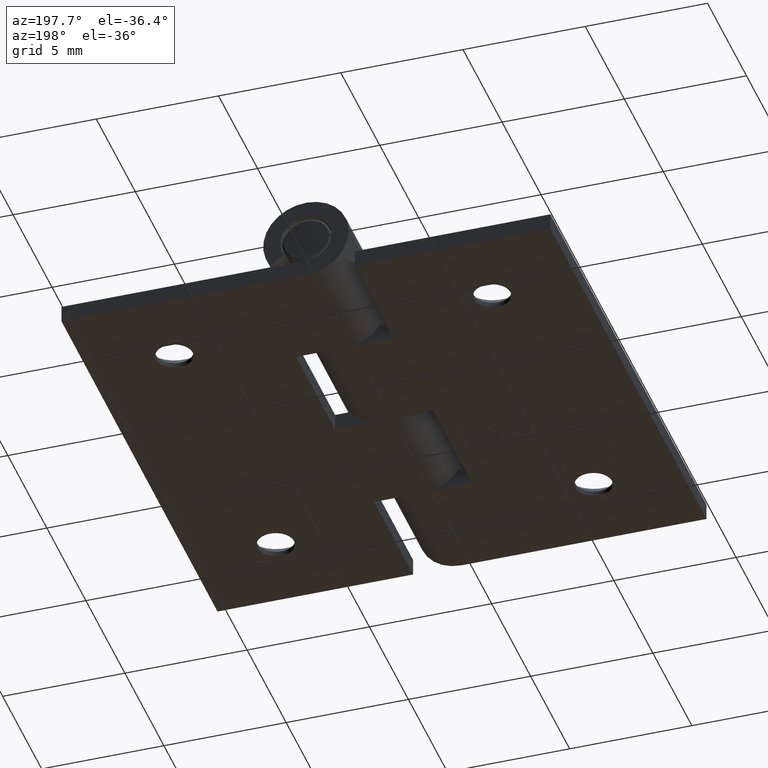
[diagram: clean part render]
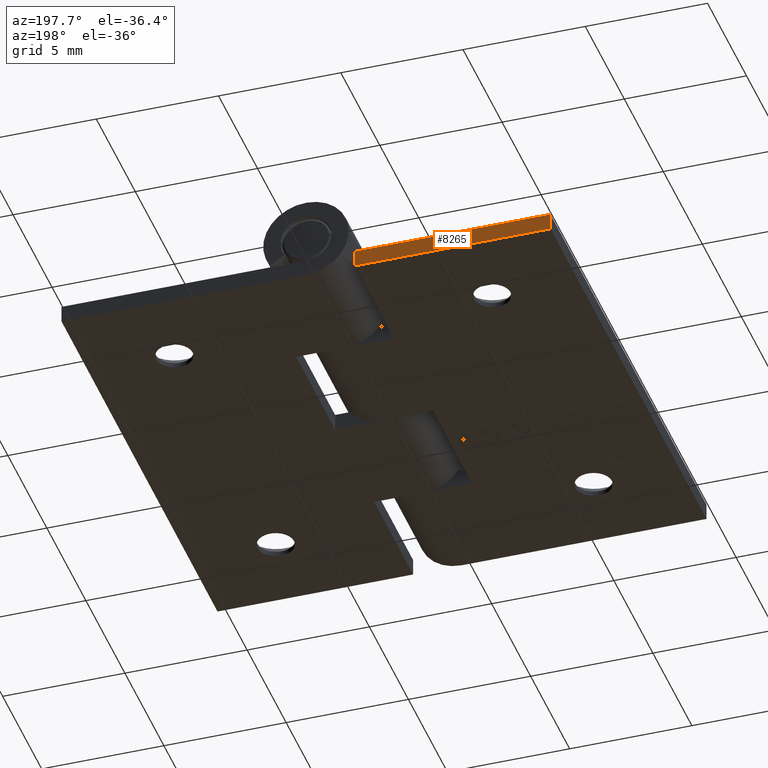
[diagram: same view with one face highlighted and labeled with its STEP entity id]
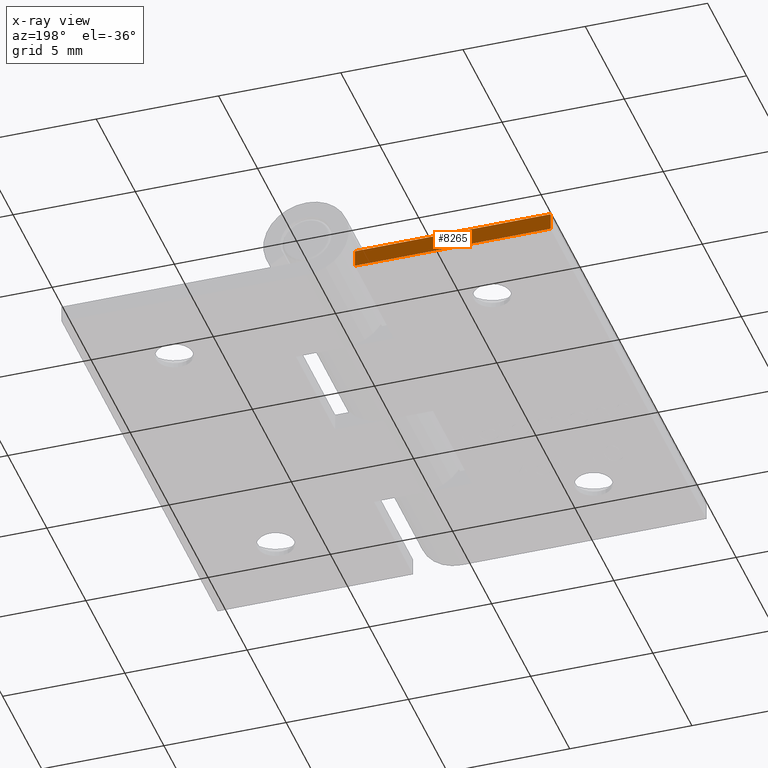
[diagram: x-ray of the same camera — body ghosted, the highlighted face saturated]
A machine part, auxiliary view. The second image highlights one B-rep face of the part: STEP entity #8265.
The next image is the same camera in x-ray: the body ghosted, the highlighted face saturated — about 0% of this face is hidden behind the body in this view.
In plain terms, the highlighted planar face has unit normal (0, -1, 0).
Its self-contained STEP definition (entity closure, byte-faithful):
#466 = CARTESIAN_POINT ( 'NONE',  ( -3.750000000000000000, 9.999999999999998224, 0.7000000000000005107 ) ) ;
#747 = VECTOR ( 'NONE', #3507, 1000.000000000000000 ) ;
#1005 = VERTEX_POINT ( 'NONE', #6741 ) ;
#1417 = PLANE ( 'NONE',  #2060 ) ;
#1485 = CARTESIAN_POINT ( 'NONE',  ( -1.750000000000000444, 10.00000000000000000, 0.6999999999999998446 ) ) ;
#2060 = AXIS2_PLACEMENT_3D ( 'NONE', #7924, #4774, #2251 ) ;
#2251 = DIRECTION ( 'NONE',  ( 0.000000000000000000, -0.000000000000000000, -1.000000000000000000 ) ) ;
#2688 = LINE ( 'NONE', #7759, #8495 ) ;
#2898 = VERTEX_POINT ( 'NONE', #8447 ) ;
#3507 = DIRECTION ( 'NONE',  ( -1.000000000000000000, 0.000000000000000000, 1.192622389734054877E-16 ) ) ;
#3646 = EDGE_CURVE ( 'NONE', #1005, #7129, #9540, .T. ) ;
#3660 = EDGE_CURVE ( 'NONE', #9944, #1005, #3710, .T. ) ;
#3710 = LINE ( 'NONE', #5592, #5672 ) ;
#3956 = ORIENTED_EDGE ( 'NONE', *, *, #3646, .T. ) ;
#4759 = CARTESIAN_POINT ( 'NONE',  ( -1.750000000000000444, 10.00000000000000000, -1.084202172485504434E-16 ) ) ;
#4774 = DIRECTION ( 'NONE',  ( 0.000000000000000000, -1.000000000000000000, 0.000000000000000000 ) ) ;
#5455 = ORIENTED_EDGE ( 'NONE', *, *, #3660, .T. ) ;
#5592 = CARTESIAN_POINT ( 'NONE',  ( -3.750000000000000000, 10.00000000000000000, 1.750000000000000888 ) ) ;
#5629 = LINE ( 'NONE', #1485, #8856 ) ;
#5672 = VECTOR ( 'NONE', #6795, 1000.000000000000000 ) ;
#6129 = DIRECTION ( 'NONE',  ( -0.000000000000000000, -0.000000000000000000, 1.000000000000000000 ) ) ;
#6432 = EDGE_LOOP ( 'NONE', ( #8796, #5455, #3956, #8528 ) ) ;
#6651 = EDGE_CURVE ( 'NONE', #2898, #9944, #5629, .T. ) ;
#6741 = CARTESIAN_POINT ( 'NONE',  ( -3.750000000000000000, 10.00000000000000000, 1.301042606982604581E-16 ) ) ;
#6788 = FACE_OUTER_BOUND ( 'NONE', #6432, .T. ) ;
#6795 = DIRECTION ( 'NONE',  ( -1.301042606982605567E-16, 0.000000000000000000, -1.000000000000000000 ) ) ;
#7129 = VERTEX_POINT ( 'NONE', #7839 ) ;
#7258 = DIRECTION ( 'NONE',  ( 1.000000000000000000, -0.000000000000000000, -1.192622389734054877E-16 ) ) ;
#7759 = CARTESIAN_POINT ( 'NONE',  ( -11.75000000000000000, 10.00000000000000000, 0.7000000000000010658 ) ) ;
#7839 = CARTESIAN_POINT ( 'NONE',  ( -11.75000000000000000, 10.00000000000000000, 1.084202172485504434E-15 ) ) ;
#7924 = CARTESIAN_POINT ( 'NONE',  ( -1.750000000000000222, 10.00000000000000000, 1.750000000000000666 ) ) ;
#8265 = ADVANCED_FACE ( 'NONE', ( #6788 ), #1417, .F. ) ;
#8447 = CARTESIAN_POINT ( 'NONE',  ( -11.75000000000000000, 10.00000000000000000, 0.7000000000000010658 ) ) ;
#8495 = VECTOR ( 'NONE', #6129, 1000.000000000000000 ) ;
#8528 = ORIENTED_EDGE ( 'NONE', *, *, #9565, .T. ) ;
#8796 = ORIENTED_EDGE ( 'NONE', *, *, #6651, .T. ) ;
#8856 = VECTOR ( 'NONE', #7258, 1000.000000000000000 ) ;
#9540 = LINE ( 'NONE', #4759, #747 ) ;
#9565 = EDGE_CURVE ( 'NONE', #7129, #2898, #2688, .T. ) ;
#9944 = VERTEX_POINT ( 'NONE', #466 ) ;